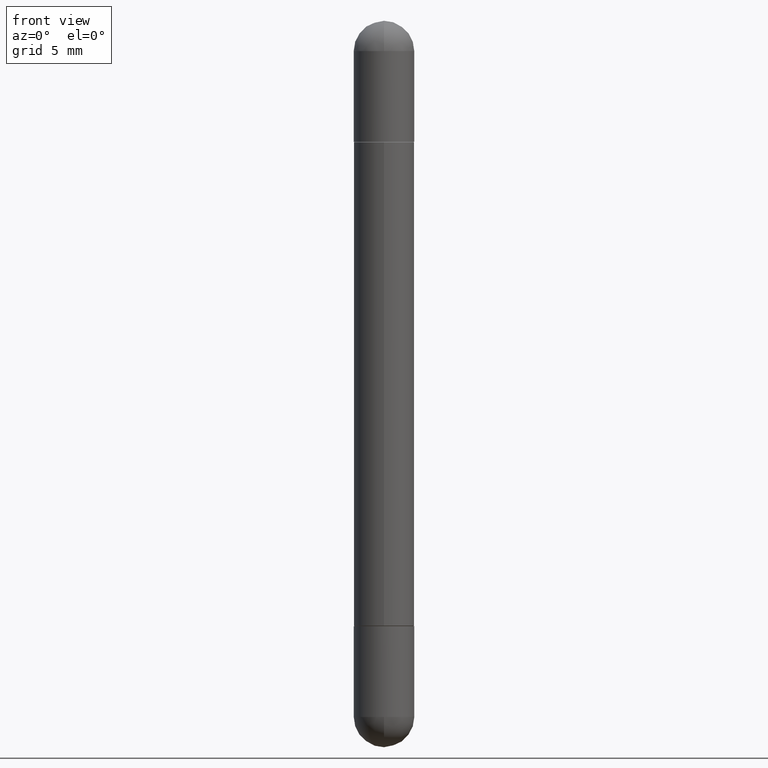
[diagram: clean part render]
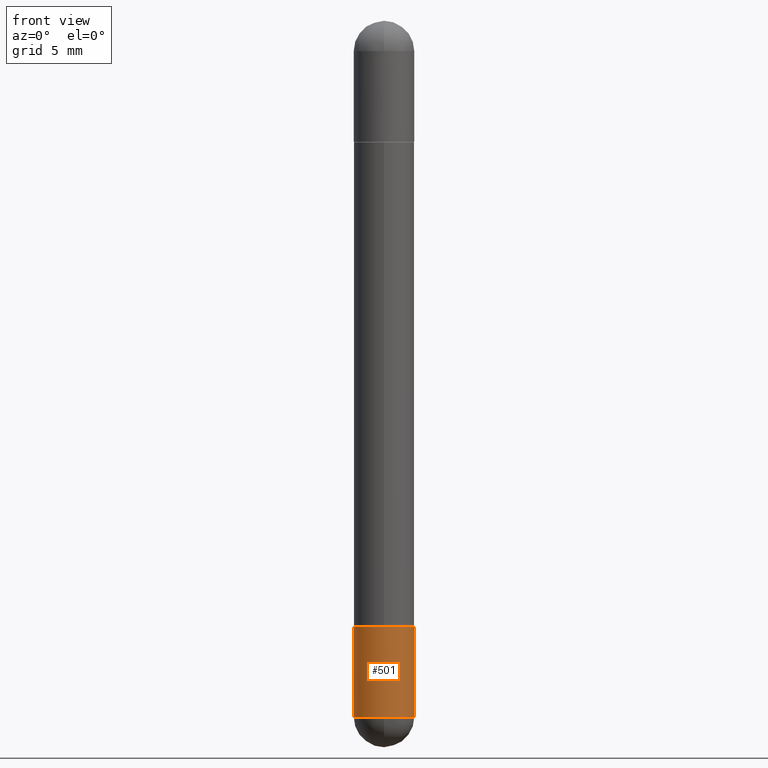
[diagram: same view with one face highlighted and labeled with its STEP entity id]
A machine part, front view. The second image highlights one B-rep face of the part: STEP entity #501.
In plain terms, the highlighted cylindrical surface (edge-blend (fillet) strip) has radius 1.5875 mm, axis along (-0, 0, 1).
Its self-contained STEP definition (entity closure, byte-faithful):
#19 = DIRECTION ( 'NONE',  ( -2.445468806185136597E-29, 3.491481338843145583E-15, 1.000000000000000000 ) ) ;
#23 = CARTESIAN_POINT ( 'NONE',  ( 3.515361408891134418E-29, -5.019004424587023131E-15, -1.437500000000000222 ) ) ;
#24 = ORIENTED_EDGE ( 'NONE', *, *, #146, .F. ) ;
#27 = CYLINDRICAL_SURFACE ( 'NONE', #503, 0.06250000000000001388 ) ;
#45 = DIRECTION ( 'NONE',  ( -2.445468806185136597E-29, 3.491481338843145583E-15, 1.000000000000000000 ) ) ;
#54 = LINE ( 'NONE', #165, #180 ) ;
#137 = CIRCLE ( 'NONE', #250, 0.06250000000000001388 ) ;
#142 = ORIENTED_EDGE ( 'NONE', *, *, #654, .T. ) ;
#146 = EDGE_CURVE ( 'NONE', #506, #571, #204, .T. ) ;
#156 = CARTESIAN_POINT ( 'NONE',  ( -0.06250000000000001388, -4.247588839220414790E-15, -1.250000000000000000 ) ) ;
#158 = CARTESIAN_POINT ( 'NONE',  ( 0.06250000000000001388, -4.800786840909324141E-15, -1.250000000000000000 ) ) ;
#165 = CARTESIAN_POINT ( 'NONE',  ( 0.06250000000000001388, -4.364351673553918173E-16, 3.047610484872460571E-30 ) ) ;
#169 = ORIENTED_EDGE ( 'NONE', *, *, #193, .T. ) ;
#177 = CARTESIAN_POINT ( 'NONE',  ( 0.06250000000000001388, -5.128113216425869076E-15, -1.437500000000000222 ) ) ;
#180 = VECTOR ( 'NONE', #418, 39.37007874015748143 ) ;
#181 = VERTEX_POINT ( 'NONE', #425 ) ;
#193 = EDGE_CURVE ( 'NONE', #366, #794, #434, .T. ) ;
#199 = DIRECTION ( 'NONE',  ( 1.000000000000000000, -6.982962677686261189E-15, 0.000000000000000000 ) ) ;
#204 = CIRCLE ( 'NONE', #303, 0.06250000000000001388 ) ;
#216 = DIRECTION ( 'NONE',  ( 1.000000000000000000, -6.982962677686267499E-15, 4.876176775795935793E-29 ) ) ;
#222 = DIRECTION ( 'NONE',  ( -2.445468806185136597E-29, 3.491481338843145583E-15, 1.000000000000000000 ) ) ;
#250 = AXIS2_PLACEMENT_3D ( 'NONE', #23, #19, #199 ) ;
#274 = VECTOR ( 'NONE', #495, 39.37007874015748143 ) ;
#303 = AXIS2_PLACEMENT_3D ( 'NONE', #782, #222, #364 ) ;
#339 = CARTESIAN_POINT ( 'NONE',  ( 0.000000000000000000, 0.000000000000000000, 0.000000000000000000 ) ) ;
#364 = DIRECTION ( 'NONE',  ( 1.000000000000000000, -6.982962677686269077E-15, 0.000000000000000000 ) ) ;
#366 = VERTEX_POINT ( 'NONE', #572 ) ;
#384 = EDGE_CURVE ( 'NONE', #181, #366, #137, .T. ) ;
#391 = DIRECTION ( 'NONE',  ( -2.445468806185136597E-29, 3.491481338843145583E-15, 1.000000000000000000 ) ) ;
#407 = ORIENTED_EDGE ( 'NONE', *, *, #797, .F. ) ;
#418 = DIRECTION ( 'NONE',  ( -2.445468806185136877E-29, 3.491481338843145188E-15, 1.000000000000000000 ) ) ;
#425 = CARTESIAN_POINT ( 'NONE',  ( -0.06250000000000001388, -4.247588839220414790E-15, -1.437500000000000222 ) ) ;
#434 = CIRCLE ( 'NONE', #600, 0.06250000000000001388 ) ;
#483 = CARTESIAN_POINT ( 'NONE',  ( 3.515361408891134418E-29, -5.019004424587023131E-15, -1.437500000000000222 ) ) ;
#495 = DIRECTION ( 'NONE',  ( -2.445468806185136877E-29, 3.491481338843145188E-15, 1.000000000000000000 ) ) ;
#501 = ADVANCED_FACE ( 'NONE', ( #655 ), #27, .T. ) ;
#503 = AXIS2_PLACEMENT_3D ( 'NONE', #339, #391, #216 ) ;
#506 = VERTEX_POINT ( 'NONE', #156 ) ;
#558 = ORIENTED_EDGE ( 'NONE', *, *, #384, .T. ) ;
#571 = VERTEX_POINT ( 'NONE', #158 ) ;
#572 = CARTESIAN_POINT ( 'NONE',  ( -4.440892098500298784E-16, -0.06250000000000537070, -1.437500000000000000 ) ) ;
#600 = AXIS2_PLACEMENT_3D ( 'NONE', #483, #45, #674 ) ;
#634 = CARTESIAN_POINT ( 'NONE',  ( -0.06250000000000001388, 4.440892098500627148E-16, -3.074334431409317165E-30 ) ) ;
#654 = EDGE_CURVE ( 'NONE', #794, #571, #54, .T. ) ;
#655 = FACE_OUTER_BOUND ( 'NONE', #682, .T. ) ;
#674 = DIRECTION ( 'NONE',  ( 1.000000000000000000, -6.982962677686261189E-15, 0.000000000000000000 ) ) ;
#682 = EDGE_LOOP ( 'NONE', ( #407, #558, #169, #142, #24 ) ) ;
#760 = LINE ( 'NONE', #634, #274 ) ;
#782 = CARTESIAN_POINT ( 'NONE',  ( 3.056836007731421306E-29, -4.364351673553932471E-15, -1.250000000000000000 ) ) ;
#794 = VERTEX_POINT ( 'NONE', #177 ) ;
#797 = EDGE_CURVE ( 'NONE', #181, #506, #760, .T. ) ;